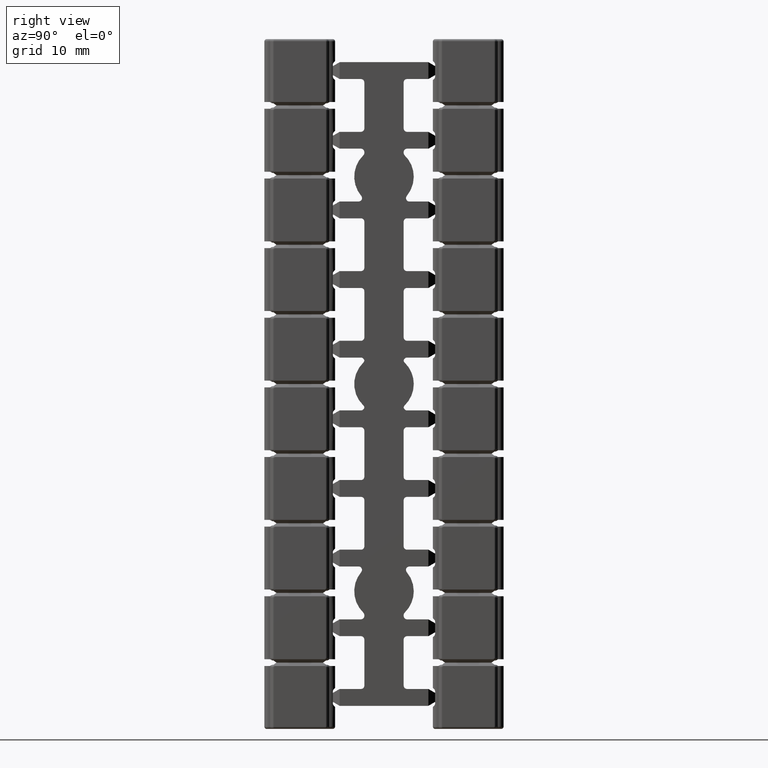
[diagram: clean part render]
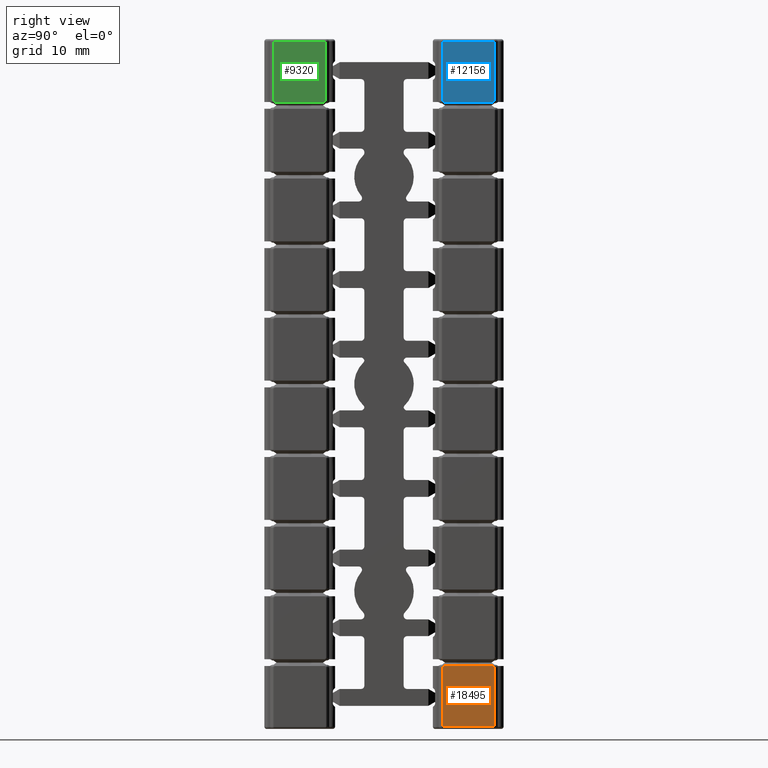
[diagram: same view with three faces highlighted in distinct colors, each labeled with its STEP entity id]
A machine part, right view with three faces highlighted in distinct colors.
Their STEP definitions:

[orange] entity #18495 — the highlighted planar face has unit normal (-1, -0, 0).
#18455 = EDGE_CURVE ( 'NONE', #18529, #18530, #31784, .T. ) ;
#18492 = VERTEX_POINT ( 'NONE', #31984 ) ;
#18494 = ORIENTED_EDGE ( 'NONE', *, *, #18590, .T. ) ;
#18495 = ADVANCED_FACE ( 'NONE', ( #31981 ), #31977, .F. ) ;
#18497 = ORIENTED_EDGE ( 'NONE', *, *, #18455, .T. ) ;
#18498 = EDGE_CURVE ( 'NONE', #18530, #18500, #32039, .T. ) ;
#18500 = VERTEX_POINT ( 'NONE', #32026 ) ;
#18501 = VERTEX_POINT ( 'NONE', #32021 ) ;
#18502 = ORIENTED_EDGE ( 'NONE', *, *, #18498, .T. ) ;
#18525 = EDGE_LOOP ( 'NONE', ( #18497, #18502, #18598, #18494, #18593, #18532 ) ) ;
#18529 = VERTEX_POINT ( 'NONE', #32086 ) ;
#18530 = VERTEX_POINT ( 'NONE', #32078 ) ;
#18532 = ORIENTED_EDGE ( 'NONE', *, *, #18594, .T. ) ;
#18588 = EDGE_CURVE ( 'NONE', #18501, #18500, #32316, .T. ) ;
#18589 = VERTEX_POINT ( 'NONE', #32321 ) ;
#18590 = EDGE_CURVE ( 'NONE', #18501, #18589, #32309, .T. ) ;
#18592 = EDGE_CURVE ( 'NONE', #18589, #18492, #32400, .T. ) ;
#18593 = ORIENTED_EDGE ( 'NONE', *, *, #18592, .T. ) ;
#18594 = EDGE_CURVE ( 'NONE', #18492, #18529, #32388, .T. ) ;
#18598 = ORIENTED_EDGE ( 'NONE', *, *, #18588, .F. ) ;
#31783 = CARTESIAN_POINT ( 'NONE',  ( 48.45237692440184700, 109.9100000000000000, -14.38291434156825900 ) ) ;
#31784 = LINE ( 'NONE', #31783, #31884 ) ;
#31883 = DIRECTION ( 'NONE',  ( 1.569340163324128600E-028, 1.642617002036179600E-028, 1.000000000000000000 ) ) ;
#31884 = VECTOR ( 'NONE', #31883, 1000.000000000000000 ) ;
#31946 = CARTESIAN_POINT ( 'NONE',  ( 48.45237692440190400, 107.6100000000000000, -18.07880093145779900 ) ) ;
#31977 = PLANE ( 'NONE',  #31979 ) ;
#31979 = AXIS2_PLACEMENT_3D ( 'NONE', #31946, #32037, #32034 ) ;
#31981 = FACE_OUTER_BOUND ( 'NONE', #18525, .T. ) ;
#31984 = CARTESIAN_POINT ( 'NONE',  ( 48.45237692440195300, 105.3100000000000000, -19.67880093145780400 ) ) ;
#32021 = CARTESIAN_POINT ( 'NONE',  ( 48.45237692440195300, 105.4586893591245200, -14.27880093145770100 ) ) ;
#32024 = DIRECTION ( 'NONE',  ( 2.071669193722270900E-014, -0.8191520442889923500, 0.5735764363510453800 ) ) ;
#32025 = VECTOR ( 'NONE', #32024, 999.9999999999998900 ) ;
#32026 = CARTESIAN_POINT ( 'NONE',  ( 48.45237692440184700, 109.7613106408754600, -14.27880093145770100 ) ) ;
#32034 = DIRECTION ( 'NONE',  ( 2.529041108016070100E-014, -1.000000000000000000, 0.0000000000000000000 ) ) ;
#32037 = DIRECTION ( 'NONE',  ( -1.000000000000000000, -2.529041108016070100E-014, 1.569340163324170100E-028 ) ) ;
#32038 = CARTESIAN_POINT ( 'NONE',  ( 48.45237692440184000, 110.1031755130658600, -14.51817729201451900 ) ) ;
#32039 = LINE ( 'NONE', #32038, #32025 ) ;
#32078 = CARTESIAN_POINT ( 'NONE',  ( 48.45237692440184700, 109.9100000000000000, -14.38291434156825900 ) ) ;
#32086 = CARTESIAN_POINT ( 'NONE',  ( 48.45237692440184700, 109.9100000000000000, -19.67880093145780400 ) ) ;
#32304 = DIRECTION ( 'NONE',  ( 2.071669193722275000E-014, -0.8191520442890010100, -0.5735764363510329500 ) ) ;
#32306 = VECTOR ( 'NONE', #32304, 1000.000000000000000 ) ;
#32307 = CARTESIAN_POINT ( 'NONE',  ( 48.45237692440196000, 105.1168244869341800, -14.51817729201447100 ) ) ;
#32309 = LINE ( 'NONE', #32307, #32306 ) ;
#32311 = DIRECTION ( 'NONE',  ( -2.529041108016070100E-014, 1.000000000000000000, -0.0000000000000000000 ) ) ;
#32312 = VECTOR ( 'NONE', #32311, 1000.000000000000000 ) ;
#32314 = CARTESIAN_POINT ( 'NONE',  ( 48.45237692440190400, 107.6100000000000000, -14.27880093145770100 ) ) ;
#32316 = LINE ( 'NONE', #32314, #32312 ) ;
#32321 = CARTESIAN_POINT ( 'NONE',  ( 48.45237692440195300, 105.3100000000000000, -14.38291434156825800 ) ) ;
#32382 = DIRECTION ( 'NONE',  ( -2.529041108016070100E-014, 1.000000000000000000, -1.642655475521430300E-028 ) ) ;
#32384 = VECTOR ( 'NONE', #32382, 1000.000000000000000 ) ;
#32386 = CARTESIAN_POINT ( 'NONE',  ( 48.45237692440184000, 110.1100000000000000, -19.67880093145780400 ) ) ;
#32388 = LINE ( 'NONE', #32386, #32384 ) ;
#32397 = DIRECTION ( 'NONE',  ( -1.569340163324130200E-028, -1.577760283927339800E-028, -1.000000000000000000 ) ) ;
#32398 = VECTOR ( 'NONE', #32397, 1000.000000000000000 ) ;
#32399 = CARTESIAN_POINT ( 'NONE',  ( 48.45237692440195300, 105.3100000000000000, -18.07880093145779900 ) ) ;
#32400 = LINE ( 'NONE', #32399, #32398 ) ;

[blue] entity #12156 — the highlighted planar face has unit normal (-1, -0, 0).
#11838 = EDGE_CURVE ( 'NONE', #11863, #11862, #37975, .T. ) ;
#11862 = VERTEX_POINT ( 'NONE', #38016 ) ;
#11863 = VERTEX_POINT ( 'NONE', #38080 ) ;
#12156 = ADVANCED_FACE ( 'NONE', ( #39057 ), #39090, .F. ) ;
#12157 = ORIENTED_EDGE ( 'NONE', *, *, #12163, .T. ) ;
#12158 = ORIENTED_EDGE ( 'NONE', *, *, #12170, .T. ) ;
#12159 = EDGE_CURVE ( 'NONE', #11862, #12226, #39047, .T. ) ;
#12160 = ORIENTED_EDGE ( 'NONE', *, *, #11838, .T. ) ;
#12162 = VERTEX_POINT ( 'NONE', #39140 ) ;
#12163 = EDGE_CURVE ( 'NONE', #12176, #11863, #39045, .T. ) ;
#12166 = EDGE_LOOP ( 'NONE', ( #12158, #12157, #12160, #12211, #12214, #12227 ) ) ;
#12170 = EDGE_CURVE ( 'NONE', #12175, #12176, #39115, .T. ) ;
#12175 = VERTEX_POINT ( 'NONE', #39093 ) ;
#12176 = VERTEX_POINT ( 'NONE', #39113 ) ;
#12211 = ORIENTED_EDGE ( 'NONE', *, *, #12159, .T. ) ;
#12212 = EDGE_CURVE ( 'NONE', #12226, #12162, #39277, .T. ) ;
#12214 = ORIENTED_EDGE ( 'NONE', *, *, #12212, .T. ) ;
#12215 = EDGE_CURVE ( 'NONE', #12162, #12175, #39365, .T. ) ;
#12226 = VERTEX_POINT ( 'NONE', #39330 ) ;
#12227 = ORIENTED_EDGE ( 'NONE', *, *, #12215, .T. ) ;
#37952 = DIRECTION ( 'NONE',  ( -2.529041108016070700E-014, 1.000000000000000000, -1.642617002036140200E-028 ) ) ;
#37954 = VECTOR ( 'NONE', #37952, 1000.000000000000000 ) ;
#37956 = CARTESIAN_POINT ( 'NONE',  ( 48.45237692440201700, 104.2327315120215700, 35.92119906854218700 ) ) ;
#37975 = LINE ( 'NONE', #37956, #37954 ) ;
#38016 = CARTESIAN_POINT ( 'NONE',  ( 48.45237692440188200, 109.7613106408757800, 35.92119906854218700 ) ) ;
#38080 = CARTESIAN_POINT ( 'NONE',  ( 48.45237692440198900, 105.4586893591242100, 35.92119906854218700 ) ) ;
#38980 = CARTESIAN_POINT ( 'NONE',  ( 48.45237692440190400, 107.6100000000000000, 37.72119906854219100 ) ) ;
#39045 = LINE ( 'NONE', #39130, #39129 ) ;
#39047 = LINE ( 'NONE', #39139, #39138 ) ;
#39048 = AXIS2_PLACEMENT_3D ( 'NONE', #38980, #39144, #39142 ) ;
#39057 = FACE_OUTER_BOUND ( 'NONE', #12166, .T. ) ;
#39090 = PLANE ( 'NONE',  #39048 ) ;
#39093 = CARTESIAN_POINT ( 'NONE',  ( 48.45237692440195300, 105.3100000000000000, 41.32119906854229200 ) ) ;
#39104 = DIRECTION ( 'NONE',  ( -1.569340163324130200E-028, -1.577760283927339800E-028, -1.000000000000000000 ) ) ;
#39105 = VECTOR ( 'NONE', #39104, 1000.000000000000000 ) ;
#39107 = CARTESIAN_POINT ( 'NONE',  ( 48.45237692440195300, 105.3100000000000000, 37.72119906854219100 ) ) ;
#39113 = CARTESIAN_POINT ( 'NONE',  ( 48.45237685715195400, 105.3100000000000000, 36.02514846646293000 ) ) ;
#39115 = LINE ( 'NONE', #39107, #39105 ) ;
#39127 = DIRECTION ( 'NONE',  ( -2.071669193722309100E-014, 0.8191520442890072300, -0.5735764363510240700 ) ) ;
#39129 = VECTOR ( 'NONE', #39127, 1000.000000000000100 ) ;
#39130 = CARTESIAN_POINT ( 'NONE',  ( 48.45237692440193900, 106.0565171077200400, 35.50259557242447500 ) ) ;
#39137 = DIRECTION ( 'NONE',  ( -2.071669193722268400E-014, 0.8191520442889984600, 0.5735764363510365000 ) ) ;
#39138 = VECTOR ( 'NONE', #39137, 1000.000000000000000 ) ;
#39139 = CARTESIAN_POINT ( 'NONE',  ( 48.45237692440186100, 109.1634828922799900, 35.50259557242448200 ) ) ;
#39140 = CARTESIAN_POINT ( 'NONE',  ( 48.45237692440184700, 109.9100000000000000, 41.32119906854229200 ) ) ;
#39142 = DIRECTION ( 'NONE',  ( 2.529041108016070100E-014, -1.000000000000000000, 0.0000000000000000000 ) ) ;
#39144 = DIRECTION ( 'NONE',  ( -1.000000000000000000, -2.529041108016070100E-014, 1.569340163324170100E-028 ) ) ;
#39277 = LINE ( 'NONE', #39368, #39367 ) ;
#39330 = CARTESIAN_POINT ( 'NONE',  ( 48.45237685715184000, 109.9100000000000000, 36.02514846646293700 ) ) ;
#39358 = DIRECTION ( 'NONE',  ( 2.529041108016070100E-014, -1.000000000000000000, -6.123233995720334300E-017 ) ) ;
#39363 = VECTOR ( 'NONE', #39358, 1000.000000000000000 ) ;
#39364 = CARTESIAN_POINT ( 'NONE',  ( 48.45237692440196000, 105.1100000000000000, 41.32119906854229200 ) ) ;
#39365 = LINE ( 'NONE', #39364, #39363 ) ;
#39366 = DIRECTION ( 'NONE',  ( 1.569340163324128600E-028, 1.642617002036179600E-028, 1.000000000000000000 ) ) ;
#39367 = VECTOR ( 'NONE', #39366, 1000.000000000000000 ) ;
#39368 = CARTESIAN_POINT ( 'NONE',  ( 48.45237692440184700, 109.9100000000000000, 41.52119906854229500 ) ) ;

[green] entity #9320 — the highlighted planar face has unit normal (-1, -0, 0).
#2784 = EDGE_CURVE ( 'NONE', #9670, #9851, #25381, .T. ) ;
#9281 = VERTEX_POINT ( 'NONE', #29153 ) ;
#9282 = ORIENTED_EDGE ( 'NONE', *, *, #2784, .T. ) ;
#9295 = ORIENTED_EDGE ( 'NONE', *, *, #9331, .T. ) ;
#9302 = ORIENTED_EDGE ( 'NONE', *, *, #9303, .T. ) ;
#9303 = EDGE_CURVE ( 'NONE', #9851, #10126, #29189, .T. ) ;
#9305 = EDGE_CURVE ( 'NONE', #10126, #9306, #29188, .T. ) ;
#9306 = VERTEX_POINT ( 'NONE', #29166 ) ;
#9309 = VERTEX_POINT ( 'NONE', #29182 ) ;
#9311 = ORIENTED_EDGE ( 'NONE', *, *, #9318, .T. ) ;
#9312 = ORIENTED_EDGE ( 'NONE', *, *, #9581, .T. ) ;
#9318 = EDGE_CURVE ( 'NONE', #9281, #9670, #29237, .T. ) ;
#9320 = ADVANCED_FACE ( 'NONE', ( #29235 ), #29247, .F. ) ;
#9331 = EDGE_CURVE ( 'NONE', #9306, #9309, #29215, .T. ) ;
#9336 = ORIENTED_EDGE ( 'NONE', *, *, #9305, .T. ) ;
#9581 = EDGE_CURVE ( 'NONE', #9309, #9281, #30018, .T. ) ;
#9583 = EDGE_LOOP ( 'NONE', ( #9312, #9311, #9282, #9302, #9336, #9295 ) ) ;
#9670 = VERTEX_POINT ( 'NONE', #30355 ) ;
#9851 = VERTEX_POINT ( 'NONE', #30920 ) ;
#10126 = VERTEX_POINT ( 'NONE', #31874 ) ;
#25378 = DIRECTION ( 'NONE',  ( -2.529041108016070700E-014, 1.000000000000000000, -1.642617002036140200E-028 ) ) ;
#25379 = VECTOR ( 'NONE', #25378, 1000.000000000000000 ) ;
#25380 = CARTESIAN_POINT ( 'NONE',  ( 48.45237692440238000, 89.23273151202157300, 35.92119906854218700 ) ) ;
#25381 = LINE ( 'NONE', #25380, #25379 ) ;
#29153 = CARTESIAN_POINT ( 'NONE',  ( 48.45237685715231600, 90.31000000000000200, 36.02514846646293000 ) ) ;
#29157 = DIRECTION ( 'NONE',  ( 1.569340163324128600E-028, 1.642617002036179600E-028, 1.000000000000000000 ) ) ;
#29158 = VECTOR ( 'NONE', #29157, 1000.000000000000000 ) ;
#29160 = CARTESIAN_POINT ( 'NONE',  ( 48.45237692440220900, 94.90999999999999700, 41.52119906854229500 ) ) ;
#29166 = CARTESIAN_POINT ( 'NONE',  ( 48.45237692440220900, 94.90999999999999700, 41.32119906854229200 ) ) ;
#29174 = DIRECTION ( 'NONE',  ( -2.071669193722268400E-014, 0.8191520442889984600, 0.5735764363510365000 ) ) ;
#29175 = VECTOR ( 'NONE', #29174, 1000.000000000000000 ) ;
#29177 = CARTESIAN_POINT ( 'NONE',  ( 48.45237692440222300, 94.16348289227998700, 35.50259557242448200 ) ) ;
#29182 = CARTESIAN_POINT ( 'NONE',  ( 48.45237692440231600, 90.31000000000000200, 41.32119906854229200 ) ) ;
#29188 = LINE ( 'NONE', #29160, #29158 ) ;
#29189 = LINE ( 'NONE', #29177, #29175 ) ;
#29215 = LINE ( 'NONE', #29292, #29290 ) ;
#29217 = DIRECTION ( 'NONE',  ( 2.529041108016070100E-014, -1.000000000000000000, 0.0000000000000000000 ) ) ;
#29218 = DIRECTION ( 'NONE',  ( -1.000000000000000000, -2.529041108016070100E-014, 1.569340163324170100E-028 ) ) ;
#29219 = CARTESIAN_POINT ( 'NONE',  ( 48.45237692440225900, 92.60999999999999900, 37.72119906854219100 ) ) ;
#29224 = DIRECTION ( 'NONE',  ( -2.071669193722309100E-014, 0.8191520442890072300, -0.5735764363510240700 ) ) ;
#29226 = VECTOR ( 'NONE', #29224, 1000.000000000000100 ) ;
#29227 = CARTESIAN_POINT ( 'NONE',  ( 48.45237692440230100, 91.05651710772004000, 35.50259557242447500 ) ) ;
#29233 = AXIS2_PLACEMENT_3D ( 'NONE', #29219, #29218, #29217 ) ;
#29235 = FACE_OUTER_BOUND ( 'NONE', #9583, .T. ) ;
#29237 = LINE ( 'NONE', #29227, #29226 ) ;
#29247 = PLANE ( 'NONE',  #29233 ) ;
#29288 = DIRECTION ( 'NONE',  ( 2.529041108016070100E-014, -1.000000000000000000, -6.123233995720334300E-017 ) ) ;
#29290 = VECTOR ( 'NONE', #29288, 1000.000000000000000 ) ;
#29292 = CARTESIAN_POINT ( 'NONE',  ( 48.45237692440232300, 90.10999999999999900, 41.32119906854229200 ) ) ;
#30014 = DIRECTION ( 'NONE',  ( -1.569340163324130200E-028, -1.577760283927339800E-028, -1.000000000000000000 ) ) ;
#30015 = VECTOR ( 'NONE', #30014, 1000.000000000000000 ) ;
#30016 = CARTESIAN_POINT ( 'NONE',  ( 48.45237692440231600, 90.31000000000000200, 37.72119906854219100 ) ) ;
#30018 = LINE ( 'NONE', #30016, #30015 ) ;
#30355 = CARTESIAN_POINT ( 'NONE',  ( 48.45237692440235100, 90.45868935912420700, 35.92119906854218700 ) ) ;
#30920 = CARTESIAN_POINT ( 'NONE',  ( 48.45237692440223800, 94.76131064087579100, 35.92119906854218700 ) ) ;
#31874 = CARTESIAN_POINT ( 'NONE',  ( 48.45237685715220300, 94.90999999999999700, 36.02514846646293700 ) ) ;